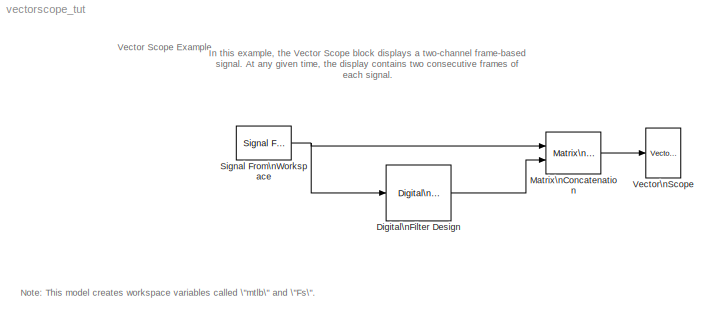
MODEL vectorscope_tut
KIND model
CONFIG AbsTol = auto
CONFIG FixedStep = auto
CONFIG MaxStep = auto
CONFIG MinStep = auto
CONFIG PostLoadFcn = set_param(gcs,'SimulationCommand','Update')
CONFIG PreLoadFcn = load mtlb;whos mtlb Fs
CONFIG RelTol = 1e-3
CONFIG Solver = FixedStepDiscrete
CONFIG SolverMode = Auto
CONFIG StartTime = 0.0
CONFIG StopTime = inf
BLOCK [Reference] Digital\nFilter Design  REF=dsparch3/Digital\nFilter Design
  Ports = [1, 1]
  SourceBlock = dsparch3/Digital\nFilter Design
  SourceType = Digital Filter Design
  UserData = DataTag0
  UserDataPersistent = on
BLOCK [Reference] Matrix\nConcatenation  REF=simulink3/Signals\n& Systems/Matrix\nConcatenation
  Ports = [2, 1]
  SourceBlock = simulink3/Signals\n& Systems/Matrix\nConcatenation
  SourceType = Matrix Concatenation
  catMethod = Horizontal
  numInports = 2
BLOCK [Reference] Signal From\nWorkspace  REF=dspsrcs3/Signal From\nWorkspace
  OutputAfterFinalValue = Cyclic Repetition
  Ports = [0, 1]
  SourceBlock = dspsrcs3/Signal From\nWorkspace
  SourceType = Signal From Workspace
  Ts = 1
  X = mtlb
  nsamps = 16
BLOCK [Reference] Vector\nScope  REF=dspsnks3/Vector\nScope
  AxisGrid = on
  AxisLegend = off
  AxisProperties = off
  AxisZoom = on
  DisplayProperties = off
  Domain = Time
  FigPos = get(0,'defaultfigureposition')
  FrameNumber = on
  HorizSpan = 2
  InheritXIncr = on
  LineColors = [0 0 1]|[0 0 0]
  LineMarkers = o|diamond
  LineProperties = off
  Memory = off
  OpenScopeAtSimStart = on
  OpenScopeImmediately = off
  Ports = [1]
  ScopeProperties = on
  SourceBlock = dspsnks3/Vector\nScope
  SourceType = Vector Scope
  XIncr = 1
  XLabel = Samples
  XRange = [0...Fs/2]
  XUnits = Hertz
  YLabel = Amplitude
  YMax = 2.72841372608282
  YMin = -2.30935873787076
  YUnits = dB
LINE Digital\nFilter Design:1 -> Matrix\nConcatenation:2
LINE Matrix\nConcatenation:1 -> Vector\nScope:1
NET Signal From\nWorkspace:1 -> Digital\nFilter Design:1, Matrix\nConcatenation:1
note: NET lines group one-source signal fan-out (src -> all destinations, sorted); 1:1 wires keep LINE
